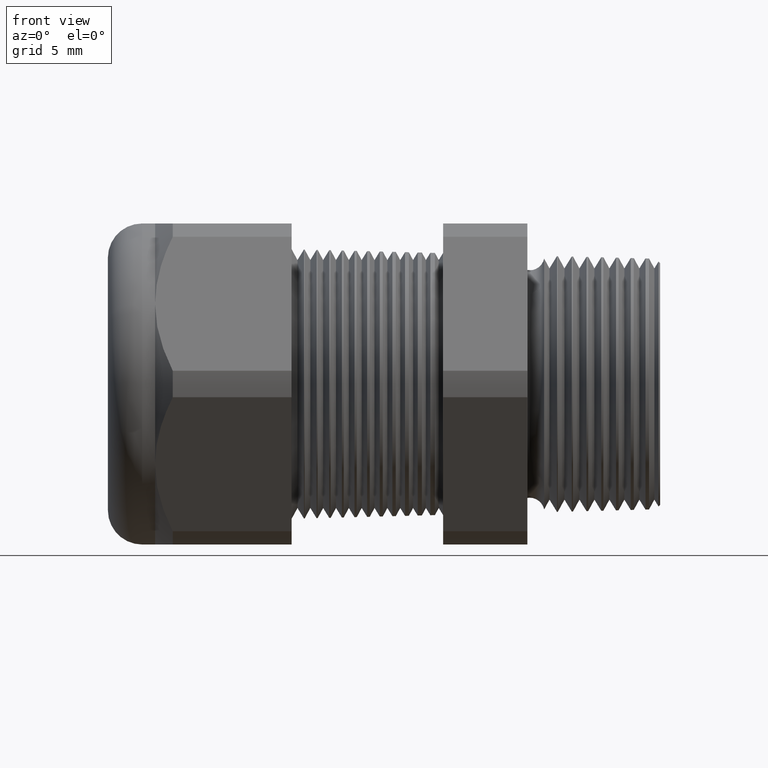
[diagram: clean part render]
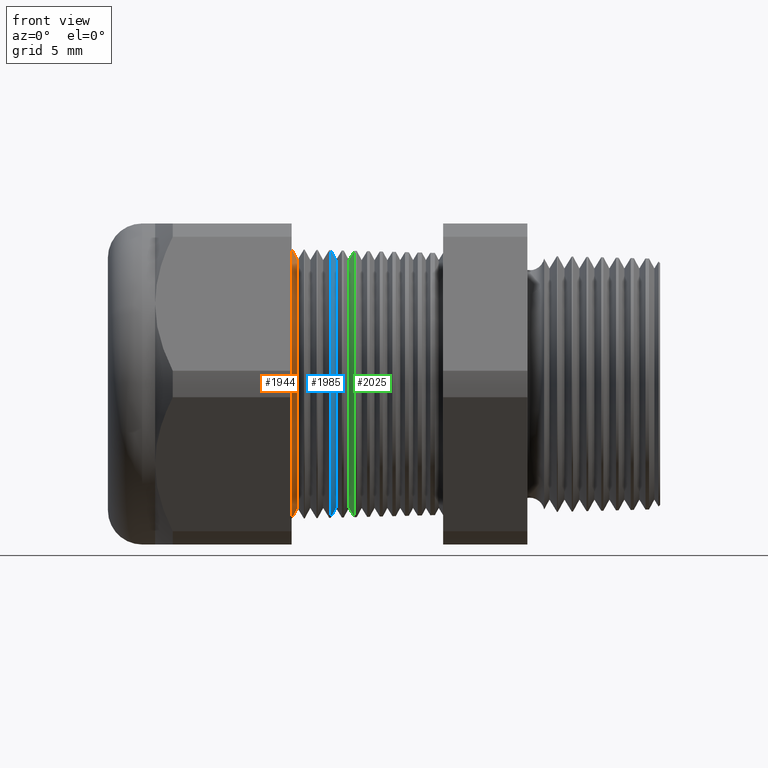
[diagram: same view with three faces highlighted in distinct colors, each labeled with its STEP entity id]
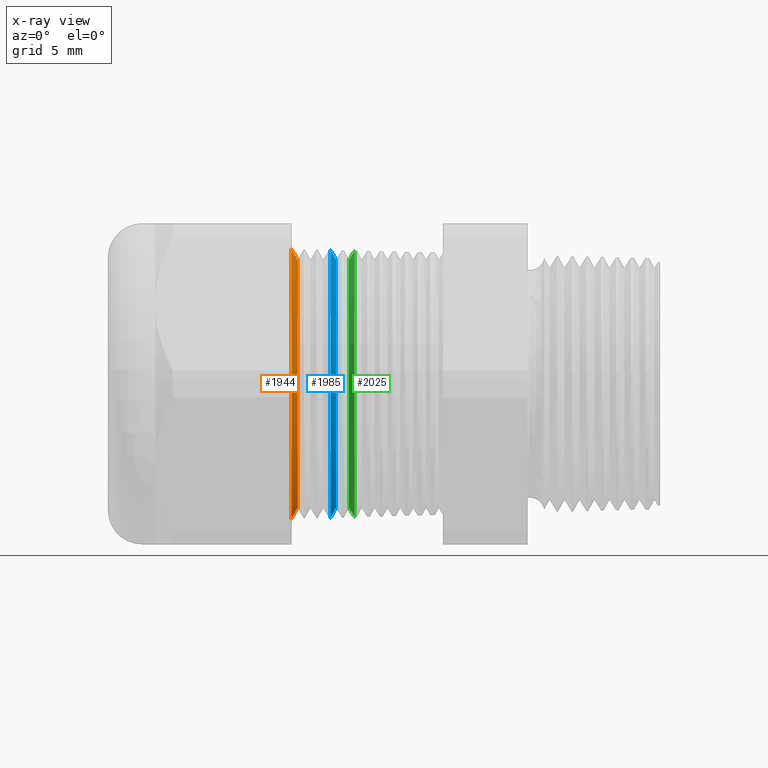
[diagram: x-ray of the same camera — body ghosted, the three highlighted faces saturated]
A machine part, front view with three faces highlighted in distinct colors.
The next image is the same camera in x-ray (body ghosted, the three faces saturated) — at least one of them is partly hidden behind the body in this view.
Their STEP definitions:

[orange] entity #1944 — the highlighted conical surface has half-angle 61.5 deg.
#1526 = VERTEX_POINT ( 'NONE', #3603 ) ;
#1527 = VERTEX_POINT ( 'NONE', #3602 ) ;
#1592 = EDGE_CURVE ( 'NONE', #1526, #1593, #3735, .T. ) ;
#1593 = VERTEX_POINT ( 'NONE', #3727 ) ;
#1596 = VERTEX_POINT ( 'NONE', #3721 ) ;
#1598 = EDGE_CURVE ( 'NONE', #1527, #1596, #3720, .T. ) ;
#1875 = EDGE_CURVE ( 'NONE', #1596, #1593, #4244, .T. ) ;
#1944 = ADVANCED_FACE ( 'NONE', ( #4355 ), #4354, .T. ) ;
#1945 = EDGE_LOOP ( 'NONE', ( #1946, #1947, #1950, #1951 ) ) ;
#1946 = ORIENTED_EDGE ( 'NONE', *, *, #1592, .F. ) ;
#1947 = ORIENTED_EDGE ( 'NONE', *, *, #1949, .F. ) ;
#1949 = EDGE_CURVE ( 'NONE', #1527, #1526, #4345, .T. ) ;
#1950 = ORIENTED_EDGE ( 'NONE', *, *, #1598, .T. ) ;
#1951 = ORIENTED_EDGE ( 'NONE', *, *, #1875, .T. ) ;
#3602 = CARTESIAN_POINT ( 'NONE',  ( -0.8470917547981793300, 0.0000000000000000000, 0.2896307351718082600 ) ) ;
#3603 = CARTESIAN_POINT ( 'NONE',  ( -0.8470917547981793300, 3.702295472471329900E-017, -0.2896307351718082600 ) ) ;
#3717 = DIRECTION ( 'NONE',  ( -0.4771587602596191200, 0.0000000000000000000, 0.8788171126619595000 ) ) ;
#3718 = VECTOR ( 'NONE', #3717, 39.37007874015748100 ) ;
#3719 = CARTESIAN_POINT ( 'NONE',  ( -0.8608661417322833700, 0.0000000000000000000, 0.3150000000000000000 ) ) ;
#3720 = LINE ( 'NONE', #3719, #3718 ) ;
#3721 = CARTESIAN_POINT ( 'NONE',  ( -0.8608661417322833700, 0.0000000000000000000, 0.3150000000000000000 ) ) ;
#3727 = CARTESIAN_POINT ( 'NONE',  ( -0.8608661417322833700, 3.857637417314162700E-017, -0.3150000000000000000 ) ) ;
#3728 = DIRECTION ( 'NONE',  ( -0.4771587602596191200, 1.076240564057387800E-016, -0.8788171126619595000 ) ) ;
#3729 = VECTOR ( 'NONE', #3728, 39.37007874015748100 ) ;
#3730 = CARTESIAN_POINT ( 'NONE',  ( -0.8608661417322833700, 3.857637417314162700E-017, -0.3150000000000000000 ) ) ;
#3735 = LINE ( 'NONE', #3730, #3729 ) ;
#4240 = DIRECTION ( 'NONE',  ( 0.0000000000000000000, 0.0000000000000000000, -1.000000000000000000 ) ) ;
#4241 = DIRECTION ( 'NONE',  ( 1.000000000000000000, 0.0000000000000000000, 0.0000000000000000000 ) ) ;
#4242 = CARTESIAN_POINT ( 'NONE',  ( -0.8608661417322833700, 0.0000000000000000000, 0.0000000000000000000 ) ) ;
#4243 = AXIS2_PLACEMENT_3D ( 'NONE', #4242, #4241, #4240 ) ;
#4244 = CIRCLE ( 'NONE', #4243, 0.3150000000000000000 ) ;
#4341 = DIRECTION ( 'NONE',  ( 0.0000000000000000000, 0.0000000000000000000, -1.000000000000000000 ) ) ;
#4342 = DIRECTION ( 'NONE',  ( 1.000000000000000000, 0.0000000000000000000, 0.0000000000000000000 ) ) ;
#4343 = CARTESIAN_POINT ( 'NONE',  ( -0.8470917547981793300, 0.0000000000000000000, 0.0000000000000000000 ) ) ;
#4344 = AXIS2_PLACEMENT_3D ( 'NONE', #4343, #4342, #4341 ) ;
#4345 = CIRCLE ( 'NONE', #4344, 0.2896307351718082600 ) ;
#4350 = DIRECTION ( 'NONE',  ( 0.0000000000000000000, 0.0000000000000000000, 1.000000000000000000 ) ) ;
#4351 = DIRECTION ( 'NONE',  ( -1.000000000000000000, 0.0000000000000000000, 0.0000000000000000000 ) ) ;
#4352 = CARTESIAN_POINT ( 'NONE',  ( -0.8608661417322833700, 0.0000000000000000000, 0.0000000000000000000 ) ) ;
#4353 = AXIS2_PLACEMENT_3D ( 'NONE', #4352, #4351, #4350 ) ;
#4354 = CONICAL_SURFACE ( 'NONE', #4353, 0.3150000000000000000, 1.073377489976500500 ) ;
#4355 = FACE_OUTER_BOUND ( 'NONE', #1945, .T. ) ;

[blue] entity #1985 — the highlighted conical surface has half-angle 61.5 deg.
#1237 = EDGE_CURVE ( 'NONE', #1502, #1499, #3031, .T. ) ;
#1498 = EDGE_CURVE ( 'NONE', #1515, #1499, #3544, .T. ) ;
#1499 = VERTEX_POINT ( 'NONE', #3540 ) ;
#1502 = VERTEX_POINT ( 'NONE', #3534 ) ;
#1504 = EDGE_CURVE ( 'NONE', #1516, #1502, #3533, .T. ) ;
#1515 = VERTEX_POINT ( 'NONE', #3564 ) ;
#1516 = VERTEX_POINT ( 'NONE', #3563 ) ;
#1985 = ADVANCED_FACE ( 'NONE', ( #4416 ), #4414, .T. ) ;
#1986 = EDGE_LOOP ( 'NONE', ( #1987, #1988, #2037, #2038 ) ) ;
#1987 = ORIENTED_EDGE ( 'NONE', *, *, #1498, .F. ) ;
#1988 = ORIENTED_EDGE ( 'NONE', *, *, #1989, .F. ) ;
#1989 = EDGE_CURVE ( 'NONE', #1516, #1515, #4410, .T. ) ;
#2037 = ORIENTED_EDGE ( 'NONE', *, *, #1504, .T. ) ;
#2038 = ORIENTED_EDGE ( 'NONE', *, *, #1237, .T. ) ;
#3028 = DIRECTION ( 'NONE',  ( 0.0000000000000000000, 0.0000000000000000000, 1.000000000000000000 ) ) ;
#3029 = DIRECTION ( 'NONE',  ( 1.000000000000000000, 0.0000000000000000000, 0.0000000000000000000 ) ) ;
#3030 = AXIS2_PLACEMENT_3D ( 'NONE', #3035, #3029, #3028 ) ;
#3031 = CIRCLE ( 'NONE', #3030, 0.3126092762375419200 ) ;
#3035 = CARTESIAN_POINT ( 'NONE',  ( -0.7695680846391956800, 0.0000000000000000000, 0.0000000000000000000 ) ) ;
#3530 = DIRECTION ( 'NONE',  ( -0.4771587602596191200, 0.0000000000000000000, 0.8788171126619595000 ) ) ;
#3531 = VECTOR ( 'NONE', #3530, 39.37007874015748100 ) ;
#3532 = CARTESIAN_POINT ( 'NONE',  ( -0.7708661417322834100, 0.0000000000000000000, 0.3150000000000000000 ) ) ;
#3533 = LINE ( 'NONE', #3532, #3531 ) ;
#3534 = CARTESIAN_POINT ( 'NONE',  ( -0.7695680846391956800, 0.0000000000000000000, 0.3126092762375419200 ) ) ;
#3540 = CARTESIAN_POINT ( 'NONE',  ( -0.7695680846391956800, 3.828902741387180100E-017, -0.3126092762375419200 ) ) ;
#3541 = DIRECTION ( 'NONE',  ( -0.4771587602596191200, 1.076240564057387800E-016, -0.8788171126619595000 ) ) ;
#3542 = VECTOR ( 'NONE', #3541, 39.37007874015748100 ) ;
#3543 = CARTESIAN_POINT ( 'NONE',  ( -0.7708661417322834100, 3.857637417314162700E-017, -0.3150000000000000000 ) ) ;
#3544 = LINE ( 'NONE', #3543, #3542 ) ;
#3563 = CARTESIAN_POINT ( 'NONE',  ( -0.7570917547981793600, 0.0000000000000000000, 0.2896307351718082600 ) ) ;
#3564 = CARTESIAN_POINT ( 'NONE',  ( -0.7570917547981793600, 3.687656511454631100E-017, -0.2896307351718082600 ) ) ;
#4406 = DIRECTION ( 'NONE',  ( 0.0000000000000000000, 0.0000000000000000000, -1.000000000000000000 ) ) ;
#4407 = DIRECTION ( 'NONE',  ( 1.000000000000000000, 0.0000000000000000000, 0.0000000000000000000 ) ) ;
#4408 = CARTESIAN_POINT ( 'NONE',  ( -0.7570917547981793600, 0.0000000000000000000, 0.0000000000000000000 ) ) ;
#4409 = AXIS2_PLACEMENT_3D ( 'NONE', #4408, #4407, #4406 ) ;
#4410 = CIRCLE ( 'NONE', #4409, 0.2896307351718082600 ) ;
#4411 = DIRECTION ( 'NONE',  ( 0.0000000000000000000, 0.0000000000000000000, 1.000000000000000000 ) ) ;
#4412 = DIRECTION ( 'NONE',  ( -1.000000000000000000, 0.0000000000000000000, 0.0000000000000000000 ) ) ;
#4413 = AXIS2_PLACEMENT_3D ( 'NONE', #4415, #4412, #4411 ) ;
#4414 = CONICAL_SURFACE ( 'NONE', #4413, 0.3150000000000000000, 1.073377489976500500 ) ;
#4415 = CARTESIAN_POINT ( 'NONE',  ( -0.7708661417322834100, 0.0000000000000000000, 0.0000000000000000000 ) ) ;
#4416 = FACE_OUTER_BOUND ( 'NONE', #1986, .T. ) ;

[green] entity #2025 — the highlighted conical surface has half-angle 58.5 deg.
#1290 = EDGE_CURVE ( 'NONE', #1426, #1430, #3119, .T. ) ;
#1415 = VERTEX_POINT ( 'NONE', #3375 ) ;
#1416 = VERTEX_POINT ( 'NONE', #3374 ) ;
#1426 = VERTEX_POINT ( 'NONE', #3418 ) ;
#1429 = EDGE_CURVE ( 'NONE', #1416, #1430, #3417, .T. ) ;
#1430 = VERTEX_POINT ( 'NONE', #3413 ) ;
#1450 = EDGE_CURVE ( 'NONE', #1415, #1426, #3437, .T. ) ;
#1974 = EDGE_CURVE ( 'NONE', #1416, #1415, #4372, .T. ) ;
#2025 = ADVANCED_FACE ( 'NONE', ( #4480 ), #4479, .T. ) ;
#2027 = EDGE_LOOP ( 'NONE', ( #2029, #2031, #2032, #2033 ) ) ;
#2029 = ORIENTED_EDGE ( 'NONE', *, *, #1429, .F. ) ;
#2031 = ORIENTED_EDGE ( 'NONE', *, *, #1974, .T. ) ;
#2032 = ORIENTED_EDGE ( 'NONE', *, *, #1450, .T. ) ;
#2033 = ORIENTED_EDGE ( 'NONE', *, *, #1290, .T. ) ;
#3117 = CARTESIAN_POINT ( 'NONE',  ( -0.7139037190689168100, 0.0000000000000000000, 0.0000000000000000000 ) ) ;
#3118 = AXIS2_PLACEMENT_3D ( 'NONE', #3117, #3179, #3178 ) ;
#3119 = CIRCLE ( 'NONE', #3118, 0.3111516535265204100 ) ;
#3178 = DIRECTION ( 'NONE',  ( 0.0000000000000000000, 0.0000000000000000000, -1.000000000000000000 ) ) ;
#3179 = DIRECTION ( 'NONE',  ( -1.000000000000000000, 0.0000000000000000000, 0.0000000000000000000 ) ) ;
#3374 = CARTESIAN_POINT ( 'NONE',  ( -0.7270917547981793300, 0.0000000000000000000, 0.2896307351718082600 ) ) ;
#3375 = CARTESIAN_POINT ( 'NONE',  ( -0.7270917547981793300, 3.682776857782397700E-017, -0.2896307351718082600 ) ) ;
#3413 = CARTESIAN_POINT ( 'NONE',  ( -0.7139037190689168100, 0.0000000000000000000, 0.3111516535265204100 ) ) ;
#3414 = DIRECTION ( 'NONE',  ( 0.5224985647159348100, 1.044183048100722500E-016, 0.8526401643541007300 ) ) ;
#3415 = VECTOR ( 'NONE', #3414, 39.37007874015748900 ) ;
#3416 = CARTESIAN_POINT ( 'NONE',  ( -0.7270917547981793300, 3.546953527628497700E-017, 0.2896307351718082600 ) ) ;
#3417 = LINE ( 'NONE', #3416, #3415 ) ;
#3418 = CARTESIAN_POINT ( 'NONE',  ( -0.7139037190689168100, 3.810508765406594800E-017, -0.3111516535265204100 ) ) ;
#3430 = DIRECTION ( 'NONE',  ( 0.5224985647159348100, 0.0000000000000000000, -0.8526401643541007300 ) ) ;
#3431 = VECTOR ( 'NONE', #3430, 39.37007874015748900 ) ;
#3432 = CARTESIAN_POINT ( 'NONE',  ( -0.7270917547981793300, 0.0000000000000000000, -0.2896307351718082600 ) ) ;
#3437 = LINE ( 'NONE', #3432, #3431 ) ;
#4369 = DIRECTION ( 'NONE',  ( 0.0000000000000000000, 0.0000000000000000000, -1.000000000000000000 ) ) ;
#4370 = DIRECTION ( 'NONE',  ( 1.000000000000000000, 0.0000000000000000000, 0.0000000000000000000 ) ) ;
#4371 = AXIS2_PLACEMENT_3D ( 'NONE', #4376, #4370, #4369 ) ;
#4372 = CIRCLE ( 'NONE', #4371, 0.2896307351718082600 ) ;
#4376 = CARTESIAN_POINT ( 'NONE',  ( -0.7270917547981793300, 0.0000000000000000000, 0.0000000000000000000 ) ) ;
#4476 = DIRECTION ( 'NONE',  ( 0.0000000000000000000, 0.0000000000000000000, -1.000000000000000000 ) ) ;
#4477 = DIRECTION ( 'NONE',  ( 1.000000000000000000, 0.0000000000000000000, 0.0000000000000000000 ) ) ;
#4478 = AXIS2_PLACEMENT_3D ( 'NONE', #4485, #4477, #4476 ) ;
#4479 = CONICAL_SURFACE ( 'NONE', #4478, 0.2896307351718082600, 1.021017612416699200 ) ;
#4480 = FACE_OUTER_BOUND ( 'NONE', #2027, .T. ) ;
#4485 = CARTESIAN_POINT ( 'NONE',  ( -0.7270917547981793300, 0.0000000000000000000, 0.0000000000000000000 ) ) ;